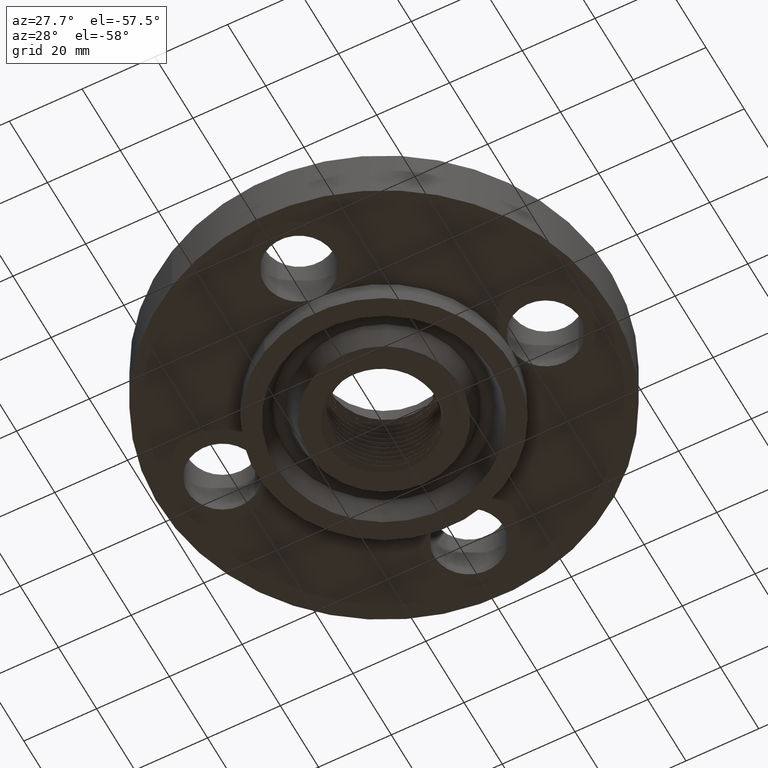
[diagram: clean part render]
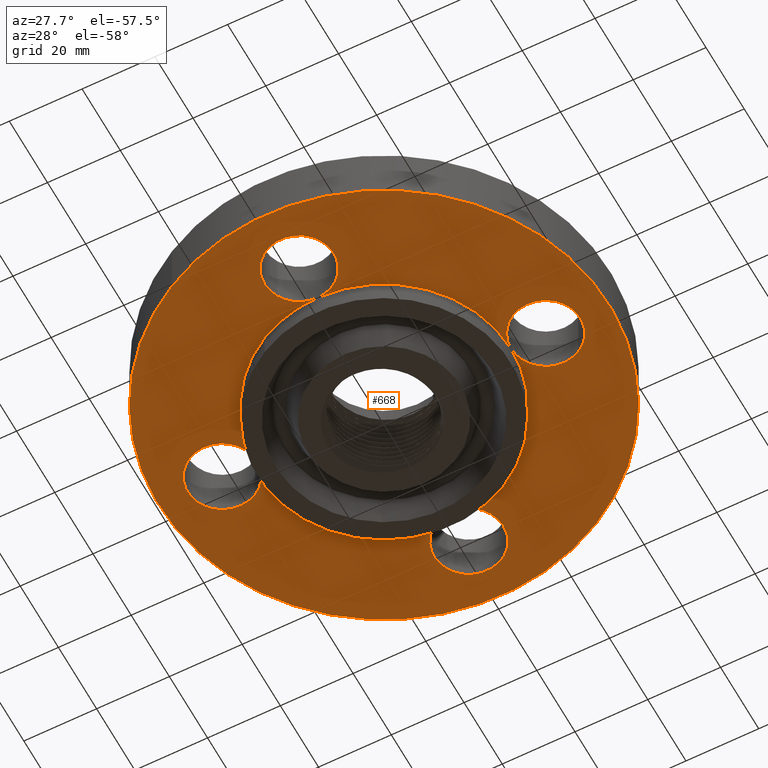
[diagram: same view with one face highlighted and labeled with its STEP entity id]
A machine part, auxiliary view. The second image highlights one B-rep face of the part: STEP entity #668.
In plain terms, the highlighted planar face has unit normal (0, 0, -1).
Its self-contained STEP definition (entity closure, byte-faithful):
#391=AXIS2_PLACEMENT_3D('Circle Axis2P3D',#389,#390,$) ;
#398=AXIS2_PLACEMENT_3D('Circle Axis2P3D',#396,#397,$) ;
#425=AXIS2_PLACEMENT_3D('Circle Axis2P3D',#423,#424,$) ;
#456=AXIS2_PLACEMENT_3D('Circle Axis2P3D',#454,#455,$) ;
#463=AXIS2_PLACEMENT_3D('Circle Axis2P3D',#461,#462,$) ;
#490=AXIS2_PLACEMENT_3D('Circle Axis2P3D',#488,#489,$) ;
#521=AXIS2_PLACEMENT_3D('Circle Axis2P3D',#519,#520,$) ;
#528=AXIS2_PLACEMENT_3D('Circle Axis2P3D',#526,#527,$) ;
#555=AXIS2_PLACEMENT_3D('Circle Axis2P3D',#553,#554,$) ;
#573=AXIS2_PLACEMENT_3D('Plane Axis2P3D',#570,#571,#572) ;
#577=AXIS2_PLACEMENT_3D('Circle Axis2P3D',#575,#576,$) ;
#586=AXIS2_PLACEMENT_3D('Circle Axis2P3D',#584,#585,$) ;
#595=AXIS2_PLACEMENT_3D('Circle Axis2P3D',#593,#594,$) ;
#600=AXIS2_PLACEMENT_3D('Circle Axis2P3D',#598,#599,$) ;
#607=AXIS2_PLACEMENT_3D('Circle Axis2P3D',#605,#606,$) ;
#614=AXIS2_PLACEMENT_3D('Circle Axis2P3D',#612,#613,$) ;
#621=AXIS2_PLACEMENT_3D('Circle Axis2P3D',#619,#620,$) ;
#628=AXIS2_PLACEMENT_3D('Circle Axis2P3D',#626,#627,$) ;
#633=AXIS2_PLACEMENT_3D('Circle Axis2P3D',#631,#632,$) ;
#638=AXIS2_PLACEMENT_3D('Circle Axis2P3D',#636,#637,$) ;
#645=AXIS2_PLACEMENT_3D('Circle Axis2P3D',#643,#644,$) ;
#384=CARTESIAN_POINT('Vertex',(-0.32909346071,-1.57021542303,0.)) ;
#389=CARTESIAN_POINT('Axis2P3D Location',(2.14313189852E-016,-1.75000000001,0.)) ;
#393=CARTESIAN_POINT('Vertex',(2.02112938519E-016,-1.37500000001,0.)) ;
#396=CARTESIAN_POINT('Axis2P3D Location',(2.14313189852E-016,-1.75000000001,0.)) ;
#400=CARTESIAN_POINT('Vertex',(0.32909346071,-1.92978457698,0.)) ;
#423=CARTESIAN_POINT('Axis2P3D Location',(2.14313189852E-016,-1.75000000001,0.)) ;
#449=CARTESIAN_POINT('Vertex',(-1.57021542303,0.32909346071,0.)) ;
#454=CARTESIAN_POINT('Axis2P3D Location',(-1.75000000001,-3.21469784777E-016,0.)) ;
#458=CARTESIAN_POINT('Vertex',(-1.37500000001,-2.79741234551E-016,0.)) ;
#461=CARTESIAN_POINT('Axis2P3D Location',(-1.75000000001,-3.21469784777E-016,0.)) ;
#465=CARTESIAN_POINT('Vertex',(-1.92978457698,-0.32909346071,0.)) ;
#488=CARTESIAN_POINT('Axis2P3D Location',(-1.75000000001,-3.21469784777E-016,0.)) ;
#514=CARTESIAN_POINT('Vertex',(1.57021542303,-0.32909346071,0.)) ;
#519=CARTESIAN_POINT('Axis2P3D Location',(1.75000000001,-1.72584639625E-016,0.)) ;
#523=CARTESIAN_POINT('Vertex',(1.37500000001,0.,0.)) ;
#526=CARTESIAN_POINT('Axis2P3D Location',(1.75000000001,-1.72584639625E-016,0.)) ;
#530=CARTESIAN_POINT('Vertex',(1.92978457698,0.32909346071,0.)) ;
#553=CARTESIAN_POINT('Axis2P3D Location',(1.75000000001,-1.72584639625E-016,0.)) ;
#570=CARTESIAN_POINT('Axis2P3D Location',(0.,1.37500000001,0.)) ;
#575=CARTESIAN_POINT('Axis2P3D Location',(0.,0.,0.)) ;
#579=CARTESIAN_POINT('Vertex',(-1.1697983142,-2.14130145102,6.99353086378E-017)) ;
#581=CARTESIAN_POINT('Vertex',(1.1697983142,2.14130145102,6.99353086378E-017)) ;
#584=CARTESIAN_POINT('Axis2P3D Location',(0.,0.,0.)) ;
#593=CARTESIAN_POINT('Axis2P3D Location',(0.,0.,0.)) ;
#598=CARTESIAN_POINT('Axis2P3D Location',(0.,0.,0.)) ;
#602=CARTESIAN_POINT('Vertex',(0.659210115583,1.2066760226,0.)) ;
#605=CARTESIAN_POINT('Axis2P3D Location',(0.,0.,0.)) ;
#609=CARTESIAN_POINT('Vertex',(-5.47434258046E-015,1.37500000001,0.)) ;
#612=CARTESIAN_POINT('Axis2P3D Location',(3.49676543189E-017,1.75000000001,0.)) ;
#616=CARTESIAN_POINT('Vertex',(0.32909346071,1.57021542303,0.)) ;
#619=CARTESIAN_POINT('Axis2P3D Location',(-6.99353086378E-017,1.75000000001,0.)) ;
#623=CARTESIAN_POINT('Vertex',(-0.32909346071,1.92978457698,0.)) ;
#626=CARTESIAN_POINT('Axis2P3D Location',(3.49676543189E-017,1.75000000001,0.)) ;
#631=CARTESIAN_POINT('Axis2P3D Location',(0.,0.,0.)) ;
#636=CARTESIAN_POINT('Axis2P3D Location',(0.,0.,0.)) ;
#640=CARTESIAN_POINT('Vertex',(-0.659210115583,-1.2066760226,0.)) ;
#643=CARTESIAN_POINT('Axis2P3D Location',(0.,0.,0.)) ;
#390=DIRECTION('Axis2P3D Direction',(-0.,0.,-0.0393700787402)) ;
#397=DIRECTION('Axis2P3D Direction',(-0.,0.,-0.0393700787402)) ;
#424=DIRECTION('Axis2P3D Direction',(-0.,0.,-0.0393700787402)) ;
#455=DIRECTION('Axis2P3D Direction',(0.,0.,-0.0393700787402)) ;
#462=DIRECTION('Axis2P3D Direction',(0.,0.,-0.0393700787402)) ;
#489=DIRECTION('Axis2P3D Direction',(0.,0.,-0.0393700787402)) ;
#520=DIRECTION('Axis2P3D Direction',(0.,-0.,-0.0393700787402)) ;
#527=DIRECTION('Axis2P3D Direction',(0.,-0.,-0.0393700787402)) ;
#554=DIRECTION('Axis2P3D Direction',(0.,-0.,-0.0393700787402)) ;
#571=DIRECTION('Axis2P3D Direction',(0.,0.,-0.0393700787402)) ;
#572=DIRECTION('Axis2P3D XDirection',(0.0393700787402,0.,0.)) ;
#576=DIRECTION('Axis2P3D Direction',(0.,0.,-0.0393700787402)) ;
#585=DIRECTION('Axis2P3D Direction',(0.,0.,-0.0393700787402)) ;
#594=DIRECTION('Axis2P3D Direction',(0.,0.,-0.0393700787402)) ;
#599=DIRECTION('Axis2P3D Direction',(0.,0.,-0.0393700787402)) ;
#606=DIRECTION('Axis2P3D Direction',(0.,0.,-0.0393700787402)) ;
#613=DIRECTION('Axis2P3D Direction',(0.,0.,-0.0393700787402)) ;
#620=DIRECTION('Axis2P3D Direction',(0.,0.,-0.0393700787402)) ;
#627=DIRECTION('Axis2P3D Direction',(0.,0.,-0.0393700787402)) ;
#632=DIRECTION('Axis2P3D Direction',(0.,0.,-0.0393700787402)) ;
#637=DIRECTION('Axis2P3D Direction',(0.,0.,-0.0393700787402)) ;
#644=DIRECTION('Axis2P3D Direction',(0.,0.,-0.0393700787402)) ;
#590=ORIENTED_EDGE('',*,*,#583,.T.) ;
#591=ORIENTED_EDGE('',*,*,#588,.T.) ;
#649=ORIENTED_EDGE('',*,*,#395,.F.) ;
#650=ORIENTED_EDGE('',*,*,#427,.F.) ;
#651=ORIENTED_EDGE('',*,*,#402,.F.) ;
#652=ORIENTED_EDGE('',*,*,#597,.F.) ;
#653=ORIENTED_EDGE('',*,*,#525,.F.) ;
#654=ORIENTED_EDGE('',*,*,#557,.F.) ;
#655=ORIENTED_EDGE('',*,*,#532,.F.) ;
#656=ORIENTED_EDGE('',*,*,#604,.F.) ;
#657=ORIENTED_EDGE('',*,*,#611,.F.) ;
#658=ORIENTED_EDGE('',*,*,#618,.F.) ;
#659=ORIENTED_EDGE('',*,*,#625,.F.) ;
#660=ORIENTED_EDGE('',*,*,#630,.F.) ;
#661=ORIENTED_EDGE('',*,*,#635,.F.) ;
#662=ORIENTED_EDGE('',*,*,#460,.F.) ;
#663=ORIENTED_EDGE('',*,*,#492,.F.) ;
#664=ORIENTED_EDGE('',*,*,#467,.F.) ;
#665=ORIENTED_EDGE('',*,*,#642,.F.) ;
#666=ORIENTED_EDGE('',*,*,#647,.F.) ;
#667=FACE_BOUND('',#648,.T.) ;
#668=ADVANCED_FACE('PartBody',(#592,#667),#574,.T.) ;
#392=CIRCLE('generated circle',#391,0.375000000001) ;
#399=CIRCLE('generated circle',#398,0.375000000001) ;
#426=CIRCLE('generated circle',#425,0.375000000001) ;
#457=CIRCLE('generated circle',#456,0.375000000001) ;
#464=CIRCLE('generated circle',#463,0.375000000001) ;
#491=CIRCLE('generated circle',#490,0.375000000001) ;
#522=CIRCLE('generated circle',#521,0.375000000001) ;
#529=CIRCLE('generated circle',#528,0.375000000001) ;
#556=CIRCLE('generated circle',#555,0.375000000001) ;
#578=CIRCLE('generated circle',#577,2.44000000001) ;
#587=CIRCLE('generated circle',#586,2.44000000001) ;
#596=CIRCLE('generated circle',#595,1.37500000001) ;
#601=CIRCLE('generated circle',#600,1.37500000001) ;
#608=CIRCLE('generated circle',#607,1.37500000001) ;
#615=CIRCLE('generated circle',#614,0.375000000001) ;
#622=CIRCLE('generated circle',#621,0.375000000001) ;
#629=CIRCLE('generated circle',#628,0.375000000001) ;
#634=CIRCLE('generated circle',#633,1.37500000001) ;
#639=CIRCLE('generated circle',#638,1.37500000001) ;
#646=CIRCLE('generated circle',#645,1.37500000001) ;
#395=EDGE_CURVE('',#385,#394,#392,.T.) ;
#402=EDGE_CURVE('',#394,#401,#399,.T.) ;
#427=EDGE_CURVE('',#401,#385,#426,.T.) ;
#460=EDGE_CURVE('',#450,#459,#457,.T.) ;
#467=EDGE_CURVE('',#459,#466,#464,.T.) ;
#492=EDGE_CURVE('',#466,#450,#491,.T.) ;
#525=EDGE_CURVE('',#515,#524,#522,.T.) ;
#532=EDGE_CURVE('',#524,#531,#529,.T.) ;
#557=EDGE_CURVE('',#531,#515,#556,.T.) ;
#583=EDGE_CURVE('',#580,#582,#578,.T.) ;
#588=EDGE_CURVE('',#582,#580,#587,.T.) ;
#597=EDGE_CURVE('',#524,#394,#596,.T.) ;
#604=EDGE_CURVE('',#603,#524,#601,.T.) ;
#611=EDGE_CURVE('',#610,#603,#608,.T.) ;
#618=EDGE_CURVE('',#617,#610,#615,.T.) ;
#625=EDGE_CURVE('',#624,#617,#622,.T.) ;
#630=EDGE_CURVE('',#610,#624,#629,.T.) ;
#635=EDGE_CURVE('',#459,#610,#634,.T.) ;
#642=EDGE_CURVE('',#641,#459,#639,.T.) ;
#647=EDGE_CURVE('',#394,#641,#646,.T.) ;
#589=EDGE_LOOP('',(#590,#591)) ;
#648=EDGE_LOOP('',(#649,#650,#651,#652,#653,#654,#655,#656,#657,#658,#659,#660,#661,#662,#663,#664,#665,#666)) ;
#592=FACE_OUTER_BOUND('',#589,.T.) ;
#574=PLANE('',#573) ;
#385=VERTEX_POINT('',#384) ;
#394=VERTEX_POINT('',#393) ;
#401=VERTEX_POINT('',#400) ;
#450=VERTEX_POINT('',#449) ;
#459=VERTEX_POINT('',#458) ;
#466=VERTEX_POINT('',#465) ;
#515=VERTEX_POINT('',#514) ;
#524=VERTEX_POINT('',#523) ;
#531=VERTEX_POINT('',#530) ;
#580=VERTEX_POINT('',#579) ;
#582=VERTEX_POINT('',#581) ;
#603=VERTEX_POINT('',#602) ;
#610=VERTEX_POINT('',#609) ;
#617=VERTEX_POINT('',#616) ;
#624=VERTEX_POINT('',#623) ;
#641=VERTEX_POINT('',#640) ;